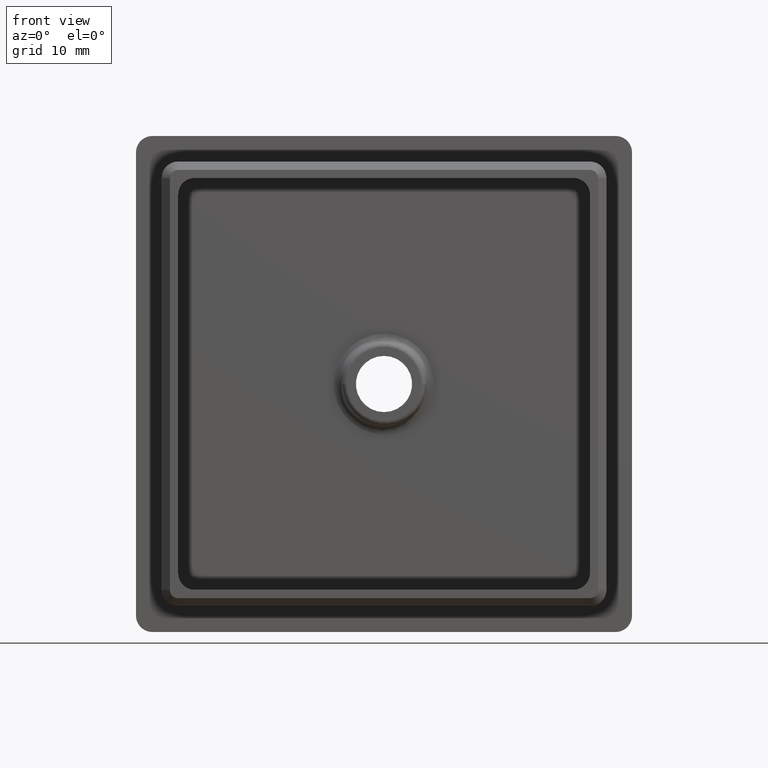
[diagram: clean part render]
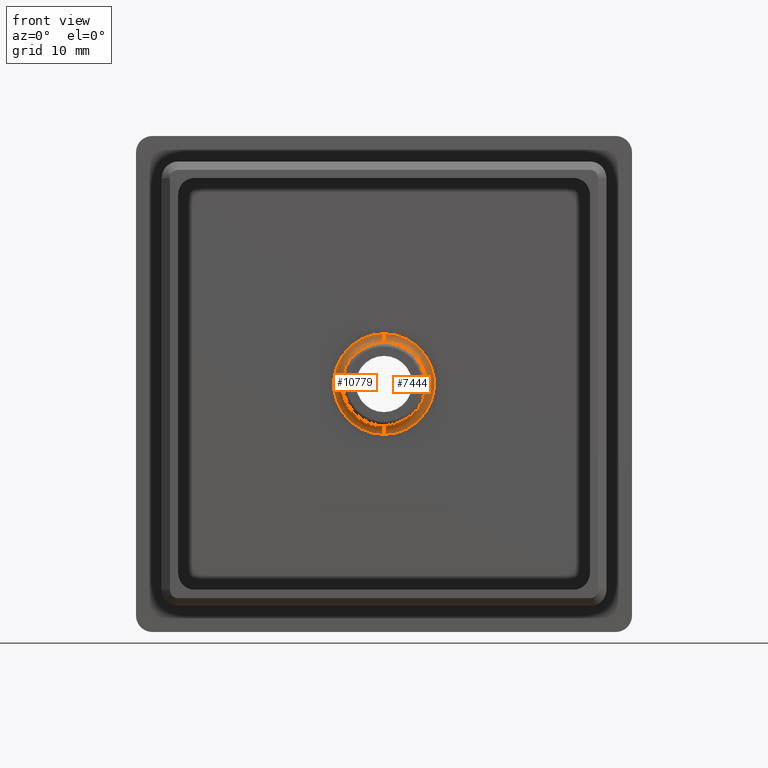
[diagram: same view with one multi-face feature highlighted, each face labeled with its STEP entity id]
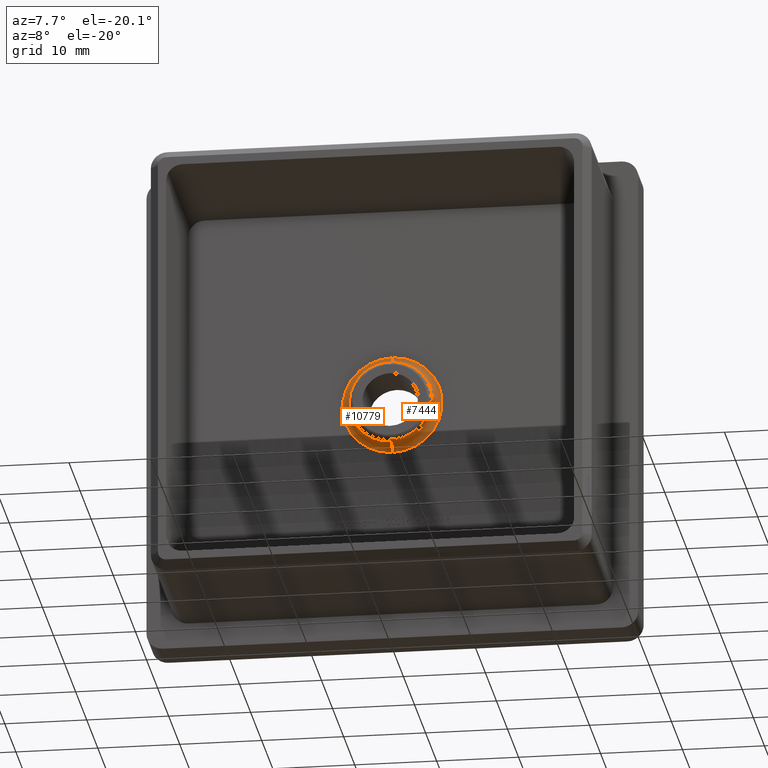
[diagram: same view with one multi-face feature highlighted, each face labeled with its STEP entity id]
A machine part, front view. The highlighted faces form ONE feature: a constant-radius fillet chain: 2 tangent blend faces with common blend radius 1 mm. The faces share edges in the B-rep.
A second angle (auxiliary view) of the same feature is appended — it is thin or edge-on in the first view.
Their STEP definitions:
[1] entity #10779 (Torus):
#801 = DIRECTION ( 'NONE',  ( -1.000000000000000000, 0.0000000000000000000, 0.0000000000000000000 ) ) ;
#1233 = ORIENTED_EDGE ( 'NONE', *, *, #2893, .F. ) ;
#1607 = VERTEX_POINT ( 'NONE', #13534 ) ;
#1634 = DIRECTION ( 'NONE',  ( 0.0000000000000000000, 0.0000000000000000000, 1.000000000000000000 ) ) ;
#2355 = CARTESIAN_POINT ( 'NONE',  ( 1.001573005813146500E-015, -1.000000000000000000, -6.091308501069263100 ) ) ;
#2434 = VERTEX_POINT ( 'NONE', #17955 ) ;
#2828 = DIRECTION ( 'NONE',  ( 0.0000000000000000000, 0.0000000000000000000, 1.000000000000000000 ) ) ;
#2830 = AXIS2_PLACEMENT_3D ( 'NONE', #9873, #801, #9659 ) ;
#2893 = EDGE_CURVE ( 'NONE', #5654, #12860, #4858, .T. ) ;
#2899 = CARTESIAN_POINT ( 'NONE',  ( 2.556028599677928600E-016, 0.0000000000000000000, 1.984021111433010100E-016 ) ) ;
#3340 = DIRECTION ( 'NONE',  ( 1.224646799147353500E-016, -1.000000000000000000, 0.0000000000000000000 ) ) ;
#3646 = DIRECTION ( 'NONE',  ( 1.000000000000000000, -0.0000000000000000000, 1.224646799147353200E-016 ) ) ;
#4152 = DIRECTION ( 'NONE',  ( 0.0000000000000000000, 1.000000000000000000, 0.0000000000000000000 ) ) ;
#4609 = CARTESIAN_POINT ( 'NONE',  ( 2.556028599677928600E-016, -0.9128442572523486300, 1.984021111433010100E-016 ) ) ;
#4801 = DIRECTION ( 'NONE',  ( -1.000000000000000000, -1.276755198502429000E-016, 0.0000000000000000000 ) ) ;
#4858 = CIRCLE ( 'NONE', #16793, 6.091308501069263100 ) ;
#5564 = CIRCLE ( 'NONE', #6197, 1.000000000000000000 ) ;
#5654 = VERTEX_POINT ( 'NONE', #8654 ) ;
#6035 = CARTESIAN_POINT ( 'NONE',  ( 2.556028599677928600E-016, -1.000000000000000000, 1.984021111433010100E-016 ) ) ;
#6197 = AXIS2_PLACEMENT_3D ( 'NONE', #2355, #3646, #11077 ) ;
#6415 = TOROIDAL_SURFACE ( 'NONE', #12271, 6.091308501069263100, 1.000000000000000000 ) ;
#6569 = CARTESIAN_POINT ( 'NONE',  ( 2.556028599677928600E-016, -0.9128442572523486300, 1.984021111433010100E-016 ) ) ;
#7460 = AXIS2_PLACEMENT_3D ( 'NONE', #4609, #13659, #4801 ) ;
#8654 = CARTESIAN_POINT ( 'NONE',  ( 1.001573005813146500E-015, 0.0000000000000000000, -6.091308501069263100 ) ) ;
#8755 = FACE_OUTER_BOUND ( 'NONE', #13471, .T. ) ;
#9659 = DIRECTION ( 'NONE',  ( 0.0000000000000000000, 0.0000000000000000000, 1.000000000000000000 ) ) ;
#9873 = CARTESIAN_POINT ( 'NONE',  ( 2.556028599677928600E-016, -1.000000000000000000, 6.091308501069263100 ) ) ;
#9941 = EDGE_CURVE ( 'NONE', #12860, #13298, #14861, .T. ) ;
#10626 = DIRECTION ( 'NONE',  ( 0.0000000000000000000, 1.000000000000000000, 0.0000000000000000000 ) ) ;
#10779 = ADVANCED_FACE ( 'NONE', ( #8755 ), #6415, .F. ) ;
#10844 = DIRECTION ( 'NONE',  ( -1.000000000000000000, -1.276755198502429000E-016, 0.0000000000000000000 ) ) ;
#11077 = DIRECTION ( 'NONE',  ( 1.224646799147352500E-016, 0.0000000000000000000, -1.000000000000000000 ) ) ;
#12080 = CARTESIAN_POINT ( 'NONE',  ( 2.556028599677929600E-016, -0.9128442572523486300, 5.095113802977517800 ) ) ;
#12271 = AXIS2_PLACEMENT_3D ( 'NONE', #6035, #10626, #1634 ) ;
#12446 = EDGE_CURVE ( 'NONE', #5654, #2434, #5564, .T. ) ;
#12658 = EDGE_CURVE ( 'NONE', #13298, #1607, #14100, .T. ) ;
#12860 = VERTEX_POINT ( 'NONE', #17320 ) ;
#13298 = VERTEX_POINT ( 'NONE', #12080 ) ;
#13393 = AXIS2_PLACEMENT_3D ( 'NONE', #6569, #3340, #10844 ) ;
#13471 = EDGE_LOOP ( 'NONE', ( #1233, #17719, #16056, #17636, #16306 ) ) ;
#13534 = CARTESIAN_POINT ( 'NONE',  ( -5.095113802977517800, -0.9128442572523493000, 0.0000000000000000000 ) ) ;
#13659 = DIRECTION ( 'NONE',  ( 1.224646799147353500E-016, -1.000000000000000000, 0.0000000000000000000 ) ) ;
#14100 = CIRCLE ( 'NONE', #7460, 5.095113802977517800 ) ;
#14332 = CIRCLE ( 'NONE', #13393, 5.095113802977517800 ) ;
#14861 = CIRCLE ( 'NONE', #2830, 1.000000000000000000 ) ;
#16056 = ORIENTED_EDGE ( 'NONE', *, *, #19163, .F. ) ;
#16306 = ORIENTED_EDGE ( 'NONE', *, *, #9941, .F. ) ;
#16793 = AXIS2_PLACEMENT_3D ( 'NONE', #2899, #4152, #2828 ) ;
#17320 = CARTESIAN_POINT ( 'NONE',  ( 2.556028599677928600E-016, 0.0000000000000000000, 6.091308501069263100 ) ) ;
#17636 = ORIENTED_EDGE ( 'NONE', *, *, #12658, .F. ) ;
#17719 = ORIENTED_EDGE ( 'NONE', *, *, #12446, .T. ) ;
#17955 = CARTESIAN_POINT ( 'NONE',  ( 9.405736733958655000E-016, -0.9128442572523486300, -5.095113802977517800 ) ) ;
#19163 = EDGE_CURVE ( 'NONE', #1607, #2434, #14332, .T. ) ;
[2] entity #7444 (Torus):
#143 = EDGE_CURVE ( 'NONE', #2434, #18383, #17860, .T. ) ;
#801 = DIRECTION ( 'NONE',  ( -1.000000000000000000, 0.0000000000000000000, 0.0000000000000000000 ) ) ;
#1632 = CARTESIAN_POINT ( 'NONE',  ( 2.556028599677928600E-016, -1.000000000000000000, 1.984021111433010100E-016 ) ) ;
#1861 = AXIS2_PLACEMENT_3D ( 'NONE', #6199, #7696, #10795 ) ;
#2194 = TOROIDAL_SURFACE ( 'NONE', #8275, 6.091308501069263100, 1.000000000000000000 ) ;
#2355 = CARTESIAN_POINT ( 'NONE',  ( 1.001573005813146500E-015, -1.000000000000000000, -6.091308501069263100 ) ) ;
#2434 = VERTEX_POINT ( 'NONE', #17955 ) ;
#2561 = AXIS2_PLACEMENT_3D ( 'NONE', #19186, #4640, #10393 ) ;
#2830 = AXIS2_PLACEMENT_3D ( 'NONE', #9873, #801, #9659 ) ;
#3076 = EDGE_CURVE ( 'NONE', #18383, #13298, #6220, .T. ) ;
#3646 = DIRECTION ( 'NONE',  ( 1.000000000000000000, -0.0000000000000000000, 1.224646799147353200E-016 ) ) ;
#3821 = ORIENTED_EDGE ( 'NONE', *, *, #9941, .T. ) ;
#4393 = ORIENTED_EDGE ( 'NONE', *, *, #143, .F. ) ;
#4640 = DIRECTION ( 'NONE',  ( 1.224646799147353500E-016, -1.000000000000000000, 0.0000000000000000000 ) ) ;
#5564 = CIRCLE ( 'NONE', #6197, 1.000000000000000000 ) ;
#5654 = VERTEX_POINT ( 'NONE', #8654 ) ;
#6197 = AXIS2_PLACEMENT_3D ( 'NONE', #2355, #3646, #11077 ) ;
#6199 = CARTESIAN_POINT ( 'NONE',  ( 2.556028599677928600E-016, 0.0000000000000000000, 1.984021111433010100E-016 ) ) ;
#6220 = CIRCLE ( 'NONE', #2561, 5.095113802977517800 ) ;
#6592 = FACE_OUTER_BOUND ( 'NONE', #7790, .T. ) ;
#6751 = ORIENTED_EDGE ( 'NONE', *, *, #3076, .F. ) ;
#7444 = ADVANCED_FACE ( 'NONE', ( #6592 ), #2194, .F. ) ;
#7696 = DIRECTION ( 'NONE',  ( 0.0000000000000000000, 1.000000000000000000, 0.0000000000000000000 ) ) ;
#7790 = EDGE_LOOP ( 'NONE', ( #15268, #10386, #3821, #6751, #4393 ) ) ;
#8275 = AXIS2_PLACEMENT_3D ( 'NONE', #1632, #13230, #16173 ) ;
#8654 = CARTESIAN_POINT ( 'NONE',  ( 1.001573005813146500E-015, 0.0000000000000000000, -6.091308501069263100 ) ) ;
#9659 = DIRECTION ( 'NONE',  ( 0.0000000000000000000, 0.0000000000000000000, 1.000000000000000000 ) ) ;
#9873 = CARTESIAN_POINT ( 'NONE',  ( 2.556028599677928600E-016, -1.000000000000000000, 6.091308501069263100 ) ) ;
#9941 = EDGE_CURVE ( 'NONE', #12860, #13298, #14861, .T. ) ;
#10386 = ORIENTED_EDGE ( 'NONE', *, *, #18519, .F. ) ;
#10393 = DIRECTION ( 'NONE',  ( -1.000000000000000000, -1.276755198502429000E-016, 0.0000000000000000000 ) ) ;
#10795 = DIRECTION ( 'NONE',  ( 0.0000000000000000000, 0.0000000000000000000, 1.000000000000000000 ) ) ;
#11077 = DIRECTION ( 'NONE',  ( 1.224646799147352500E-016, 0.0000000000000000000, -1.000000000000000000 ) ) ;
#12080 = CARTESIAN_POINT ( 'NONE',  ( 2.556028599677929600E-016, -0.9128442572523486300, 5.095113802977517800 ) ) ;
#12446 = EDGE_CURVE ( 'NONE', #5654, #2434, #5564, .T. ) ;
#12860 = VERTEX_POINT ( 'NONE', #17320 ) ;
#13230 = DIRECTION ( 'NONE',  ( 0.0000000000000000000, 1.000000000000000000, 0.0000000000000000000 ) ) ;
#13298 = VERTEX_POINT ( 'NONE', #12080 ) ;
#14633 = CARTESIAN_POINT ( 'NONE',  ( 5.095113802977517800, -0.9128442572523479700, 6.239714810107915300E-016 ) ) ;
#14861 = CIRCLE ( 'NONE', #2830, 1.000000000000000000 ) ;
#15268 = ORIENTED_EDGE ( 'NONE', *, *, #12446, .F. ) ;
#15733 = CARTESIAN_POINT ( 'NONE',  ( 2.556028599677928600E-016, -0.9128442572523486300, 1.984021111433010100E-016 ) ) ;
#16173 = DIRECTION ( 'NONE',  ( 0.0000000000000000000, 0.0000000000000000000, 1.000000000000000000 ) ) ;
#17093 = DIRECTION ( 'NONE',  ( 1.224646799147353500E-016, -1.000000000000000000, 0.0000000000000000000 ) ) ;
#17320 = CARTESIAN_POINT ( 'NONE',  ( 2.556028599677928600E-016, 0.0000000000000000000, 6.091308501069263100 ) ) ;
#17538 = AXIS2_PLACEMENT_3D ( 'NONE', #15733, #17093, #18666 ) ;
#17860 = CIRCLE ( 'NONE', #17538, 5.095113802977517800 ) ;
#17955 = CARTESIAN_POINT ( 'NONE',  ( 9.405736733958655000E-016, -0.9128442572523486300, -5.095113802977517800 ) ) ;
#18383 = VERTEX_POINT ( 'NONE', #14633 ) ;
#18519 = EDGE_CURVE ( 'NONE', #12860, #5654, #18965, .T. ) ;
#18666 = DIRECTION ( 'NONE',  ( -1.000000000000000000, -1.276755198502429000E-016, 0.0000000000000000000 ) ) ;
#18965 = CIRCLE ( 'NONE', #1861, 6.091308501069263100 ) ;
#19186 = CARTESIAN_POINT ( 'NONE',  ( 2.556028599677928600E-016, -0.9128442572523486300, 1.984021111433010100E-016 ) ) ;